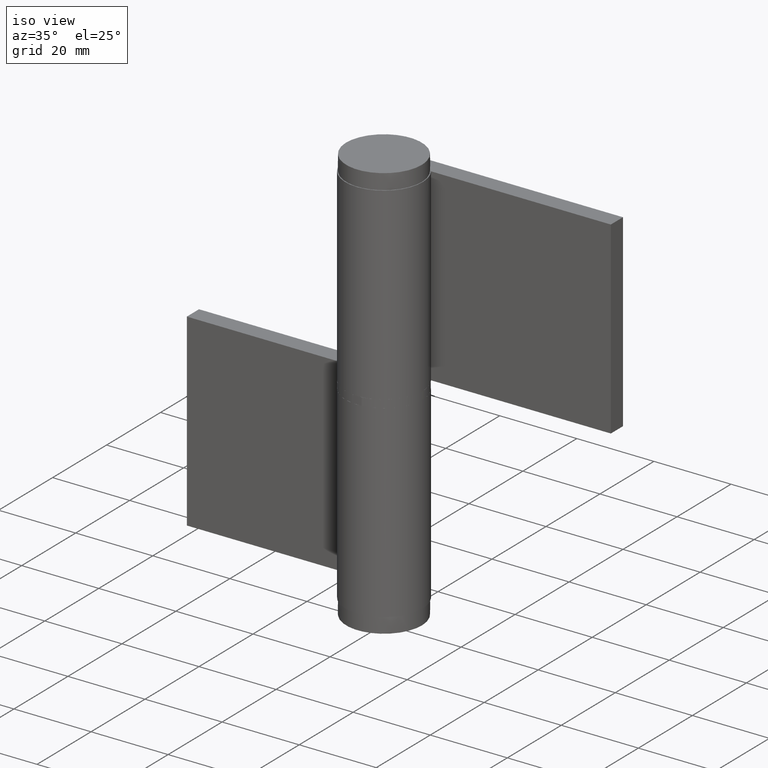
[diagram: clean part render]
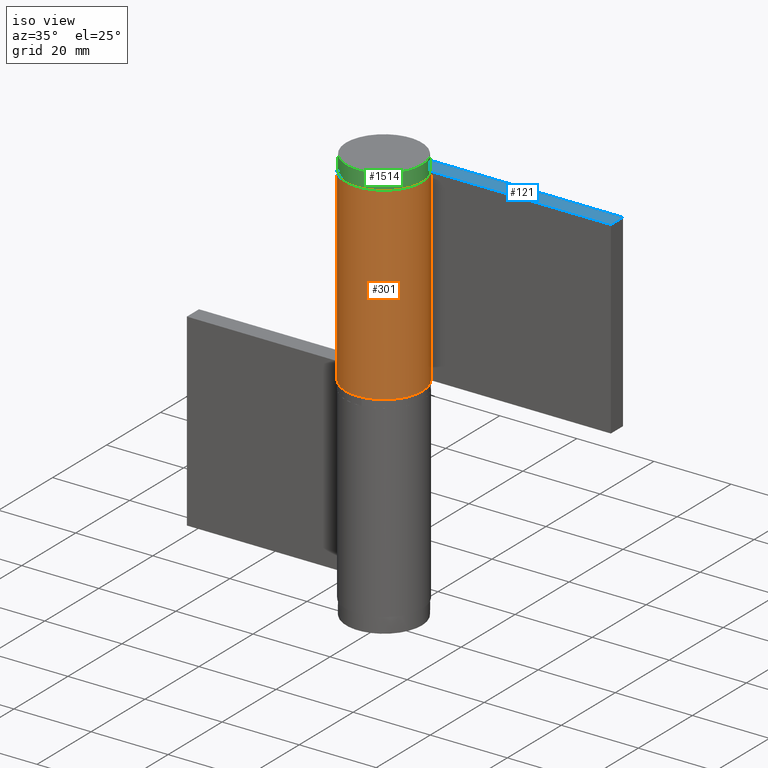
[diagram: same view with three faces highlighted in distinct colors, each labeled with its STEP entity id]
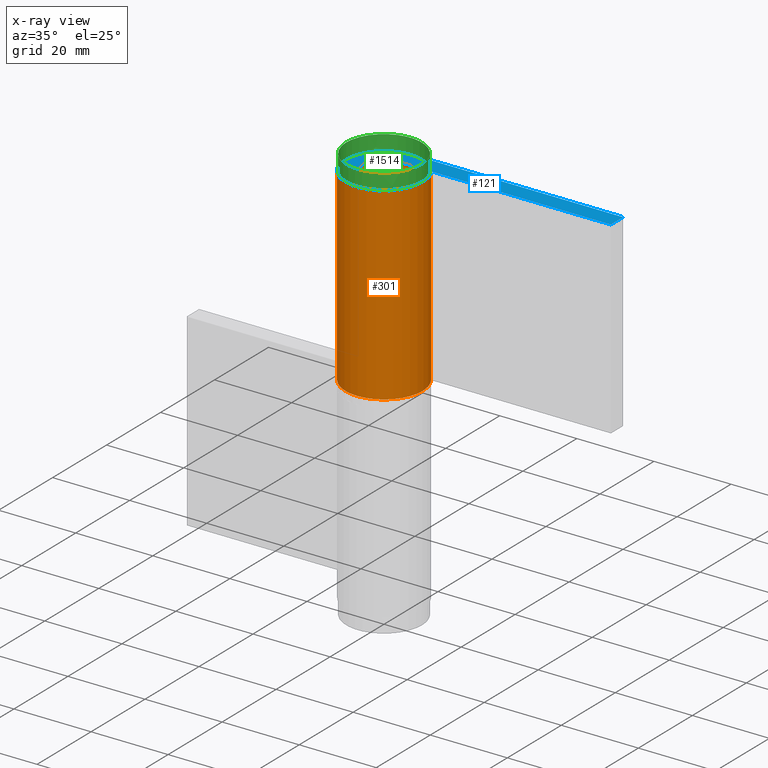
[diagram: x-ray of the same camera — body ghosted, the three highlighted faces saturated]
A machine part, iso view with three faces highlighted in distinct colors.
The next image is the same camera in x-ray (body ghosted, the three faces saturated) — at least one of them is partly hidden behind the body in this view.
Their STEP definitions:

[orange] entity #301 — the highlighted face is a freeform B-spline surface patch.
#58=CARTESIAN_POINT('',(0.0,10.0,0.0));
#59=VERTEX_POINT('',#58);
#65=CARTESIAN_POINT('',(-8.384360440725340,5.450000000000000,0.0));
#66=VERTEX_POINT('',#65);
#67=CARTESIAN_POINT('',(0.0,10.0,0.0));
#68=CARTESIAN_POINT('',(7.778645974197688,10.0,0.0));
#69=CARTESIAN_POINT('',(9.692573939780772,2.460489874371089,0.0));
#70=CARTESIAN_POINT('',(11.606501905363858,-5.079020251257823,0.0));
#71=CARTESIAN_POINT('',(4.769696007084734,-8.789197915623470,0.0));
#72=CARTESIAN_POINT('',(-2.067109891194394,-12.499375579989119,0.0));
#73=CARTESIAN_POINT('',(-7.345416193928739,-6.785636369418084,0.0));
#74=CARTESIAN_POINT('',(-12.623722496663074,-1.071897158847060,0.0));
#75=CARTESIAN_POINT('',(-8.384360440725345,5.449999999999990,0.0));
#83=(BOUNDED_CURVE()B_SPLINE_CURVE(2,(#67,#68,#69,#70,#71,#72,#73,#74,#75),.UNSPECIFIED.,.F.,.U.)B_SPLINE_CURVE_WITH_KNOTS((3,2,2,2,3),(0.0,0.250000000000000,0.500000000000000,0.750000000000000,1.0),.UNSPECIFIED.)CURVE()GEOMETRIC_REPRESENTATION_ITEM()RATIONAL_B_SPLINE_CURVE((1.0,0.789319006307687,1.0,0.789319006307687,1.0,0.789319006307687,1.0,0.789319006307687,1.0))REPRESENTATION_ITEM(''));
#84=EDGE_CURVE('',#59,#66,#83,.T.);
#164=CARTESIAN_POINT('',(-8.384360440725340,5.450000000000000,49.0));
#165=VERTEX_POINT('',#164);
#171=CARTESIAN_POINT('',(0.0,10.0,49.0));
#172=VERTEX_POINT('',#171);
#173=CARTESIAN_POINT('',(0.0,10.0,49.0));
#174=CARTESIAN_POINT('',(7.778645974197688,10.0,49.0));
#175=CARTESIAN_POINT('',(9.692573939780772,2.460489874371089,49.0));
#176=CARTESIAN_POINT('',(11.606501905363858,-5.079020251257823,49.0));
#177=CARTESIAN_POINT('',(4.769696007084734,-8.789197915623470,49.0));
#178=CARTESIAN_POINT('',(-2.067109891194394,-12.499375579989119,49.0));
#179=CARTESIAN_POINT('',(-7.345416193928739,-6.785636369418084,49.0));
#180=CARTESIAN_POINT('',(-12.623722496663074,-1.071897158847060,49.0));
#181=CARTESIAN_POINT('',(-8.384360440725345,5.449999999999990,49.0));
#189=(BOUNDED_CURVE()B_SPLINE_CURVE(2,(#173,#174,#175,#176,#177,#178,#179,#180,#181),.UNSPECIFIED.,.F.,.U.)B_SPLINE_CURVE_WITH_KNOTS((3,2,2,2,3),(0.0,0.250000000000000,0.500000000000000,0.750000000000000,1.0),.UNSPECIFIED.)CURVE()GEOMETRIC_REPRESENTATION_ITEM()RATIONAL_B_SPLINE_CURVE((1.0,0.789319006307687,1.0,0.789319006307687,1.0,0.789319006307687,1.0,0.789319006307687,1.0))REPRESENTATION_ITEM(''));
#190=EDGE_CURVE('',#172,#165,#189,.T.);
#259=CARTESIAN_POINT('',(-8.384360440725340,5.450000000000000,49.0));
#260=CARTESIAN_POINT('',(-8.384360440725340,5.450000000000000,0.0));
#261=QUASI_UNIFORM_CURVE('',1,(#259,#260),.UNSPECIFIED.,.F.,.U.);
#262=EDGE_CURVE('',#165,#66,#261,.T.);
#269=CARTESIAN_POINT('',(-8.141155183563191,5.807029557109394,50.225000000000009));
#270=CARTESIAN_POINT('',(-8.141155183563191,5.807029557109394,-1.255625000000002));
#271=CARTESIAN_POINT('',(-15.485341408594035,-4.489139795389203,50.225000000000016));
#272=CARTESIAN_POINT('',(-15.485341408594035,-4.489139795389203,-1.255625000000002));
#273=CARTESIAN_POINT('',(-3.773020732343967,-9.260902469700376,50.225000000000009));
#274=CARTESIAN_POINT('',(-3.773020732343967,-9.260902469700376,-1.255625000000002));
#275=CARTESIAN_POINT('',(7.939299943906103,-14.032665144011547,50.225000000000016));
#276=CARTESIAN_POINT('',(7.939299943906103,-14.032665144011547,-1.255625000000002));
#277=CARTESIAN_POINT('',(9.881392106600755,-1.535607383287859,50.225000000000009));
#278=CARTESIAN_POINT('',(9.881392106600755,-1.535607383287859,-1.255625000000002));
#279=CARTESIAN_POINT('',(11.823484269295408,10.961450377435828,50.225000000000016));
#280=CARTESIAN_POINT('',(11.823484269295408,10.961450377435828,-1.255625000000002));
#281=CARTESIAN_POINT('',(-0.784590957278452,9.969173337331274,50.225000000000009));
#282=CARTESIAN_POINT('',(-0.784590957278452,9.969173337331274,-1.255625000000002));
#290=(BOUNDED_SURFACE()B_SPLINE_SURFACE(1,2,((#269,#271,#273,#275,#277,#279,#281),(#270,#272,#274,#276,#278,#280,#282)),.UNSPECIFIED.,.F.,.F.,.U.)B_SPLINE_SURFACE_WITH_KNOTS((2,2),(3,2,2,3),(0.0,51.480625000000018),(0.0,19.365472961108001,38.730945922215987,58.096418883323992),.UNSPECIFIED.)GEOMETRIC_REPRESENTATION_ITEM()RATIONAL_B_SPLINE_SURFACE(((1.0,0.620235491268260,1.0,0.620235491268260,1.0,0.620235491268260,1.0),(1.0,0.620235491268260,1.0,0.620235491268260,1.0,0.620235491268260,1.0)))REPRESENTATION_ITEM('')SURFACE());
#291=ORIENTED_EDGE('',*,*,#84,.F.);
#292=CARTESIAN_POINT('',(0.0,10.0,49.0));
#293=CARTESIAN_POINT('',(0.0,10.0,0.0));
#294=QUASI_UNIFORM_CURVE('',1,(#292,#293),.UNSPECIFIED.,.F.,.U.);
#295=EDGE_CURVE('',#172,#59,#294,.T.);
#296=ORIENTED_EDGE('',*,*,#295,.F.);
#297=ORIENTED_EDGE('',*,*,#190,.T.);
#298=ORIENTED_EDGE('',*,*,#262,.T.);
#299=EDGE_LOOP('',(#291,#296,#297,#298));
#300=FACE_OUTER_BOUND('',#299,.T.);
#301=ADVANCED_FACE('',(#300),#290,.T.);

[blue] entity #121 — the highlighted face is a freeform B-spline surface patch.
#44=CARTESIAN_POINT('',(-58.246687244102581,-10.993734196401560,0.0));
#45=CARTESIAN_POINT('',(13.245435135307890,-10.993734196401560,0.0));
#46=CARTESIAN_POINT('',(-58.246687244102581,10.998749985667811,0.0));
#47=CARTESIAN_POINT('',(13.245435135307890,10.998749985667811,0.0));
#48=B_SPLINE_SURFACE_WITH_KNOTS('',1,1,((#44,#46),(#45,#47)),.UNSPECIFIED.,.F.,.F.,.U.,(2,2),(2,2),(0.0,71.492122379410475),(0.0,21.992484182069379),.UNSPECIFIED.);
#49=CARTESIAN_POINT('',(-55.0,5.500000000000000,0.0));
#50=VERTEX_POINT('',#49);
#51=CARTESIAN_POINT('',(-55.0,10.0,0.0));
#52=VERTEX_POINT('',#51);
#53=CARTESIAN_POINT('',(-55.0,5.500000000000000,0.0));
#54=CARTESIAN_POINT('',(-55.0,10.0,0.0));
#55=QUASI_UNIFORM_CURVE('',1,(#53,#54),.UNSPECIFIED.,.F.,.U.);
#56=EDGE_CURVE('',#50,#52,#55,.T.);
#57=ORIENTED_EDGE('',*,*,#56,.T.);
#58=CARTESIAN_POINT('',(0.0,10.0,0.0));
#59=VERTEX_POINT('',#58);
#60=CARTESIAN_POINT('',(-55.0,10.0,0.0));
#61=CARTESIAN_POINT('',(0.0,10.0,0.0));
#62=QUASI_UNIFORM_CURVE('',1,(#60,#61),.UNSPECIFIED.,.F.,.U.);
#63=EDGE_CURVE('',#52,#59,#62,.T.);
#64=ORIENTED_EDGE('',*,*,#63,.T.);
#65=CARTESIAN_POINT('',(-8.384360440725340,5.450000000000000,0.0));
#66=VERTEX_POINT('',#65);
#67=CARTESIAN_POINT('',(0.0,10.0,0.0));
#68=CARTESIAN_POINT('',(7.778645974197688,10.0,0.0));
#69=CARTESIAN_POINT('',(9.692573939780772,2.460489874371089,0.0));
#70=CARTESIAN_POINT('',(11.606501905363858,-5.079020251257823,0.0));
#71=CARTESIAN_POINT('',(4.769696007084734,-8.789197915623470,0.0));
#72=CARTESIAN_POINT('',(-2.067109891194394,-12.499375579989119,0.0));
#73=CARTESIAN_POINT('',(-7.345416193928739,-6.785636369418084,0.0));
#74=CARTESIAN_POINT('',(-12.623722496663074,-1.071897158847060,0.0));
#75=CARTESIAN_POINT('',(-8.384360440725345,5.449999999999990,0.0));
#83=(BOUNDED_CURVE()B_SPLINE_CURVE(2,(#67,#68,#69,#70,#71,#72,#73,#74,#75),.UNSPECIFIED.,.F.,.U.)B_SPLINE_CURVE_WITH_KNOTS((3,2,2,2,3),(0.0,0.250000000000000,0.500000000000000,0.750000000000000,1.0),.UNSPECIFIED.)CURVE()GEOMETRIC_REPRESENTATION_ITEM()RATIONAL_B_SPLINE_CURVE((1.0,0.789319006307687,1.0,0.789319006307687,1.0,0.789319006307687,1.0,0.789319006307687,1.0))REPRESENTATION_ITEM(''));
#84=EDGE_CURVE('',#59,#66,#83,.T.);
#85=ORIENTED_EDGE('',*,*,#84,.T.);
#86=CARTESIAN_POINT('',(-4.611398242398940,2.997500000000000,0.0));
#87=VERTEX_POINT('',#86);
#88=CARTESIAN_POINT('',(-8.384360440725340,5.450000000000000,0.0));
#89=CARTESIAN_POINT('',(-4.611398242398940,2.997500000000000,0.0));
#90=QUASI_UNIFORM_CURVE('',1,(#88,#89),.UNSPECIFIED.,.F.,.U.);
#91=EDGE_CURVE('',#66,#87,#90,.T.);
#92=ORIENTED_EDGE('',*,*,#91,.T.);
#93=CARTESIAN_POINT('',(3.367667E-016,5.500000000000000,0.0));
#94=VERTEX_POINT('',#93);
#95=CARTESIAN_POINT('',(0.0,5.500000000000000,0.0));
#96=CARTESIAN_POINT('',(4.278255285808728,5.500000000000001,0.0));
#97=CARTESIAN_POINT('',(5.330915666879424,1.353269430904099,0.0));
#98=CARTESIAN_POINT('',(6.383576047950122,-2.793461138191804,0.0));
#99=CARTESIAN_POINT('',(2.623332803896604,-4.834058853592909,0.0));
#100=CARTESIAN_POINT('',(-1.136910440156916,-6.874656568994016,0.0));
#101=CARTESIAN_POINT('',(-4.039978906660806,-3.732100003179946,0.0));
#102=CARTESIAN_POINT('',(-6.943047373164690,-0.589543437365883,0.0));
#103=CARTESIAN_POINT('',(-4.611398242398940,2.997499999999995,0.0));
#111=(BOUNDED_CURVE()B_SPLINE_CURVE(2,(#95,#96,#97,#98,#99,#100,#101,#102,#103),.UNSPECIFIED.,.F.,.U.)B_SPLINE_CURVE_WITH_KNOTS((3,2,2,2,3),(0.0,0.250000000000000,0.500000000000000,0.750000000000000,1.0),.UNSPECIFIED.)CURVE()GEOMETRIC_REPRESENTATION_ITEM()RATIONAL_B_SPLINE_CURVE((1.0,0.789319006307687,1.0,0.789319006307687,1.0,0.789319006307687,1.0,0.789319006307687,1.0))REPRESENTATION_ITEM(''));
#112=EDGE_CURVE('',#94,#87,#111,.T.);
#113=ORIENTED_EDGE('',*,*,#112,.F.);
#114=CARTESIAN_POINT('',(3.367667E-016,5.500000000000000,0.0));
#115=CARTESIAN_POINT('',(-55.0,5.500000000000000,0.0));
#116=QUASI_UNIFORM_CURVE('',1,(#114,#115),.UNSPECIFIED.,.F.,.U.);
#117=EDGE_CURVE('',#94,#50,#116,.T.);
#118=ORIENTED_EDGE('',*,*,#117,.T.);
#119=EDGE_LOOP('',(#57,#64,#85,#92,#113,#118));
#120=FACE_OUTER_BOUND('',#119,.T.);
#121=ADVANCED_FACE('',(#120),#48,.F.);

[green] entity #1514 — the highlighted face is a freeform B-spline surface patch.
#1393=CARTESIAN_POINT('',(9.797958972278190,0.0,103.999999994388400));
#1394=VERTEX_POINT('',#1393);
#1395=CARTESIAN_POINT('',(-9.797958972278190,0.0,103.999999994388400));
#1396=VERTEX_POINT('',#1395);
#1397=CARTESIAN_POINT('',(9.797958972278190,0.0,103.999999994388400));
#1398=CARTESIAN_POINT('',(9.797958972278190,-9.797958972278190,103.999999994388400));
#1399=CARTESIAN_POINT('',(0.0,-9.797958972278190,103.999999994388400));
#1400=CARTESIAN_POINT('',(-9.797958972278190,-9.797958972278190,103.999999994388400));
#1401=CARTESIAN_POINT('',(-9.797958972278190,0.0,103.999999994388400));
#1409=(BOUNDED_CURVE()B_SPLINE_CURVE(2,(#1397,#1398,#1399,#1400,#1401),.UNSPECIFIED.,.F.,.U.)B_SPLINE_CURVE_WITH_KNOTS((3,2,3),(0.500000000000000,0.750000000000000,1.0),.UNSPECIFIED.)CURVE()GEOMETRIC_REPRESENTATION_ITEM()RATIONAL_B_SPLINE_CURVE((1.0,0.707106781186547,1.0,0.707106781186547,1.0))REPRESENTATION_ITEM(''));
#1410=EDGE_CURVE('',#1394,#1396,#1409,.T.);
#1412=CARTESIAN_POINT('',(-9.797958972278190,0.0,103.999999994388400));
#1413=CARTESIAN_POINT('',(-9.797958972278190,9.797958972278190,103.999999994388400));
#1414=CARTESIAN_POINT('',(0.0,9.797958972278190,103.999999994388400));
#1415=CARTESIAN_POINT('',(9.797958972278190,9.797958972278190,103.999999994388400));
#1416=CARTESIAN_POINT('',(9.797958972278190,0.0,103.999999994388400));
#1424=(BOUNDED_CURVE()B_SPLINE_CURVE(2,(#1412,#1413,#1414,#1415,#1416),.UNSPECIFIED.,.F.,.U.)B_SPLINE_CURVE_WITH_KNOTS((3,2,3),(0.0,0.250000000000000,0.500000000000000),.UNSPECIFIED.)CURVE()GEOMETRIC_REPRESENTATION_ITEM()RATIONAL_B_SPLINE_CURVE((1.0,0.707106781186547,1.0,0.707106781186547,1.0))REPRESENTATION_ITEM(''));
#1425=EDGE_CURVE('',#1396,#1394,#1424,.T.);
#1430=CARTESIAN_POINT('',(-5.998846488379041,5.998846488379043,107.294117642981210));
#1431=CARTESIAN_POINT('',(-5.562566743419115,7.416755657892157,106.181818177143400));
#1432=CARTESIAN_POINT('',(-2.428104530609814,9.712418122439260,104.380952375608020));
#1433=CARTESIAN_POINT('',(2.428104530609814,9.712418122439260,104.380952375608020));
#1434=CARTESIAN_POINT('',(5.562566743419115,7.416755657892157,106.181818177143400));
#1435=CARTESIAN_POINT('',(5.998846488379041,5.998846488379043,107.294117642981210));
#1436=CARTESIAN_POINT('',(-7.416755657892153,5.562566743419119,106.181818177143400));
#1437=CARTESIAN_POINT('',(-7.284313591829442,7.284313591829442,104.380952375608020));
#1438=CARTESIAN_POINT('',(-3.516565181582024,10.549695544746072,100.965517235774400));
#1439=CARTESIAN_POINT('',(3.516565181582024,10.549695544746072,100.965517235774400));
#1440=CARTESIAN_POINT('',(7.284313591829442,7.284313591829442,104.380952375608020));
#1441=CARTESIAN_POINT('',(7.416755657892153,5.562566743419119,106.181818177143400));
#1442=CARTESIAN_POINT('',(-9.712418122439260,2.428104530609815,104.380952375608020));
#1443=CARTESIAN_POINT('',(-10.549695544746072,3.516565181582024,100.965517235774400));
#1444=CARTESIAN_POINT('',(-6.373774388379893,6.373774388379888,92.0));
#1445=CARTESIAN_POINT('',(6.373774388379893,6.373774388379888,92.0));
#1446=CARTESIAN_POINT('',(10.549695544746072,3.516565181582024,100.965517235774400));
#1447=CARTESIAN_POINT('',(9.712418122439260,2.428104530609815,104.380952375608020));
#1448=CARTESIAN_POINT('',(-9.712418122439260,-2.428104530609813,104.380952375608020));
#1449=CARTESIAN_POINT('',(-10.549695544746072,-3.516565181582025,100.965517235774400));
#1450=CARTESIAN_POINT('',(-6.373774388379893,-6.373774388379897,92.000000000000014));
#1451=CARTESIAN_POINT('',(6.373774388379893,-6.373774388379897,92.000000000000014));
#1452=CARTESIAN_POINT('',(10.549695544746072,-3.516565181582025,100.965517235774400));
#1453=CARTESIAN_POINT('',(9.712418122439260,-2.428104530609813,104.380952375608020));
#1454=CARTESIAN_POINT('',(-7.416755657892153,-5.562566743419115,106.181818177143400));
#1455=CARTESIAN_POINT('',(-7.284313591829442,-7.284313591829442,104.380952375608020));
#1456=CARTESIAN_POINT('',(-3.516565181582024,-10.549695544746072,100.965517235774400));
#1457=CARTESIAN_POINT('',(3.516565181582024,-10.549695544746072,100.965517235774400));
#1458=CARTESIAN_POINT('',(7.284313591829442,-7.284313591829442,104.380952375608020));
#1459=CARTESIAN_POINT('',(7.416755657892153,-5.562566743419115,106.181818177143400));
#1460=CARTESIAN_POINT('',(-5.998846488379041,-5.998846488379038,107.294117642981210));
#1461=CARTESIAN_POINT('',(-5.562566743419115,-7.416755657892153,106.181818177143400));
#1462=CARTESIAN_POINT('',(-2.428104530609814,-9.712418122439257,104.380952375608020));
#1463=CARTESIAN_POINT('',(2.428104530609814,-9.712418122439257,104.380952375608020));
#1464=CARTESIAN_POINT('',(5.562566743419115,-7.416755657892153,106.181818177143400));
#1465=CARTESIAN_POINT('',(5.998846488379041,-5.998846488379038,107.294117642981210));
#1473=(BOUNDED_SURFACE()B_SPLINE_SURFACE(2,2,((#1430,#1436,#1442,#1448,#1454,#1460),(#1431,#1437,#1443,#1449,#1455,#1461),(#1432,#1438,#1444,#1450,#1456,#1462),(#1433,#1439,#1445,#1451,#1457,#1463),(#1434,#1440,#1446,#1452,#1458,#1464),(#1435,#1441,#1447,#1453,#1459,#1465)),.UNSPECIFIED.,.F.,.F.,.U.)B_SPLINE_SURFACE_WITH_KNOTS((3,1,1,1,3),(3,1,1,1,3),(0.0,10.595365219074029,21.190730438148059,31.786095657222091,42.381460876296117),(0.0,10.595365219074029,21.190730438148059,31.786095657222091,42.381460876296117),.UNSPECIFIED.)GEOMETRIC_REPRESENTATION_ITEM()RATIONAL_B_SPLINE_SURFACE(((4.249999996317400,3.437499997238050,2.624999998158700,2.624999998158700,3.437499997238050,4.249999996317400),(3.437499997238050,2.624999998158700,1.812499999079350,1.812499999079350,2.624999998158700,3.437499997238050),(2.624999998158700,1.812499999079350,1.0,1.0,1.812499999079350,2.624999998158700),(2.624999998158700,1.812499999079350,1.0,1.0,1.812499999079350,2.624999998158700),(3.437499997238050,2.624999998158700,1.812499999079350,1.812499999079350,2.624999998158700,3.437499997238050),(4.249999996317400,3.437499997238050,2.624999998158700,2.624999998158700,3.437499997238050,4.249999996317400)))REPRESENTATION_ITEM('')SURFACE());
#1474=ORIENTED_EDGE('',*,*,#1425,.T.);
#1475=ORIENTED_EDGE('',*,*,#1410,.T.);
#1476=EDGE_LOOP('',(#1474,#1475));
#1477=FACE_OUTER_BOUND('',#1476,.T.);
#1478=CARTESIAN_POINT('',(-9.797958971132710,0.0,100.0));
#1479=VERTEX_POINT('',#1478);
#1480=CARTESIAN_POINT('',(9.797958971132710,0.0,100.0));
#1481=VERTEX_POINT('',#1480);
#1482=CARTESIAN_POINT('',(-9.797958971132710,0.0,100.0));
#1483=CARTESIAN_POINT('',(-9.797958971132710,9.797958971132710,100.0));
#1484=CARTESIAN_POINT('',(0.0,9.797958971132710,100.0));
#1485=CARTESIAN_POINT('',(9.797958971132710,9.797958971132710,100.0));
#1486=CARTESIAN_POINT('',(9.797958971132710,0.0,100.0));
#1494=(BOUNDED_CURVE()B_SPLINE_CURVE(2,(#1482,#1483,#1484,#1485,#1486),.UNSPECIFIED.,.F.,.U.)B_SPLINE_CURVE_WITH_KNOTS((3,2,3),(0.0,0.250000000000000,0.500000000000000),.UNSPECIFIED.)CURVE()GEOMETRIC_REPRESENTATION_ITEM()RATIONAL_B_SPLINE_CURVE((1.0,0.707106781186548,1.0,0.707106781186548,1.0))REPRESENTATION_ITEM(''));
#1495=EDGE_CURVE('',#1479,#1481,#1494,.T.);
#1496=ORIENTED_EDGE('',*,*,#1495,.F.);
#1497=CARTESIAN_POINT('',(9.797958971132710,0.0,100.0));
#1498=CARTESIAN_POINT('',(9.797958971132710,-9.797958971132710,100.0));
#1499=CARTESIAN_POINT('',(0.0,-9.797958971132710,100.0));
#1500=CARTESIAN_POINT('',(-9.797958971132710,-9.797958971132710,100.0));
#1501=CARTESIAN_POINT('',(-9.797958971132710,0.0,100.0));
#1509=(BOUNDED_CURVE()B_SPLINE_CURVE(2,(#1497,#1498,#1499,#1500,#1501),.UNSPECIFIED.,.F.,.U.)B_SPLINE_CURVE_WITH_KNOTS((3,2,3),(0.500000000000000,0.750000000000000,1.0),.UNSPECIFIED.)CURVE()GEOMETRIC_REPRESENTATION_ITEM()RATIONAL_B_SPLINE_CURVE((1.0,0.707106781186548,1.0,0.707106781186548,1.0))REPRESENTATION_ITEM(''));
#1510=EDGE_CURVE('',#1481,#1479,#1509,.T.);
#1511=ORIENTED_EDGE('',*,*,#1510,.F.);
#1512=EDGE_LOOP('',(#1496,#1511));
#1513=FACE_BOUND('',#1512,.T.);
#1514=ADVANCED_FACE('',(#1477,#1513),#1473,.T.);